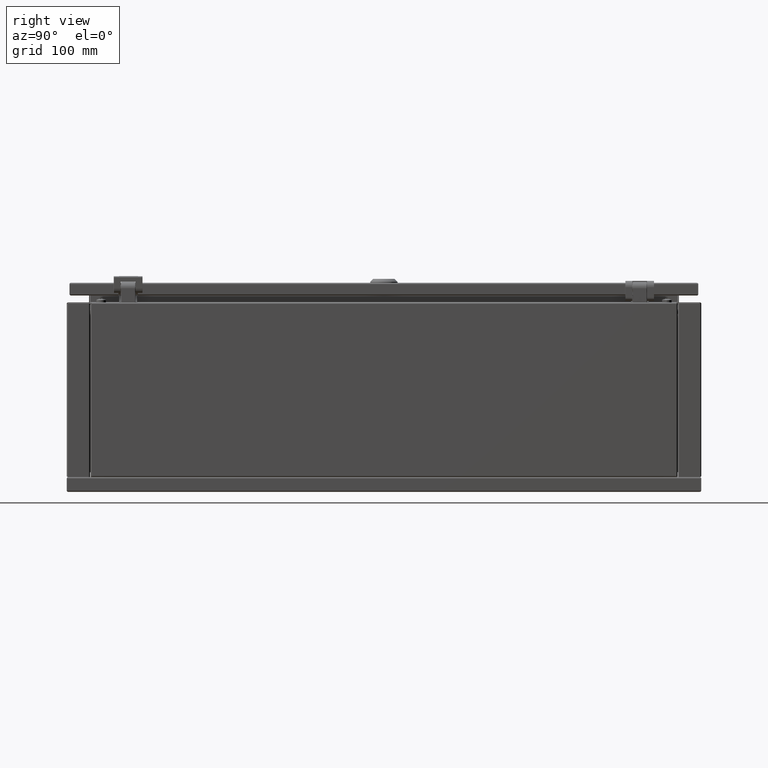
[diagram: clean part render]
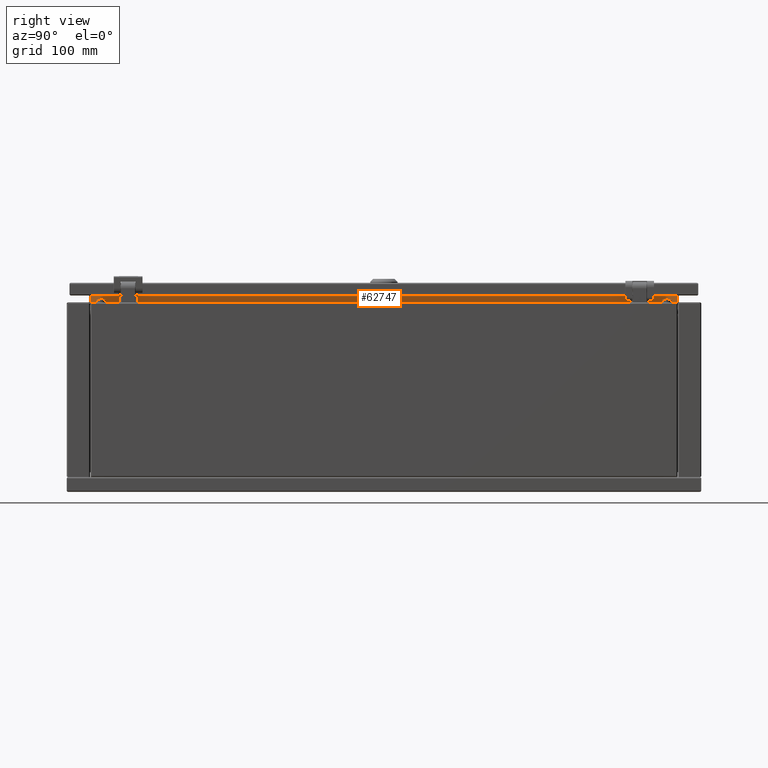
[diagram: same view with one face highlighted and labeled with its STEP entity id]
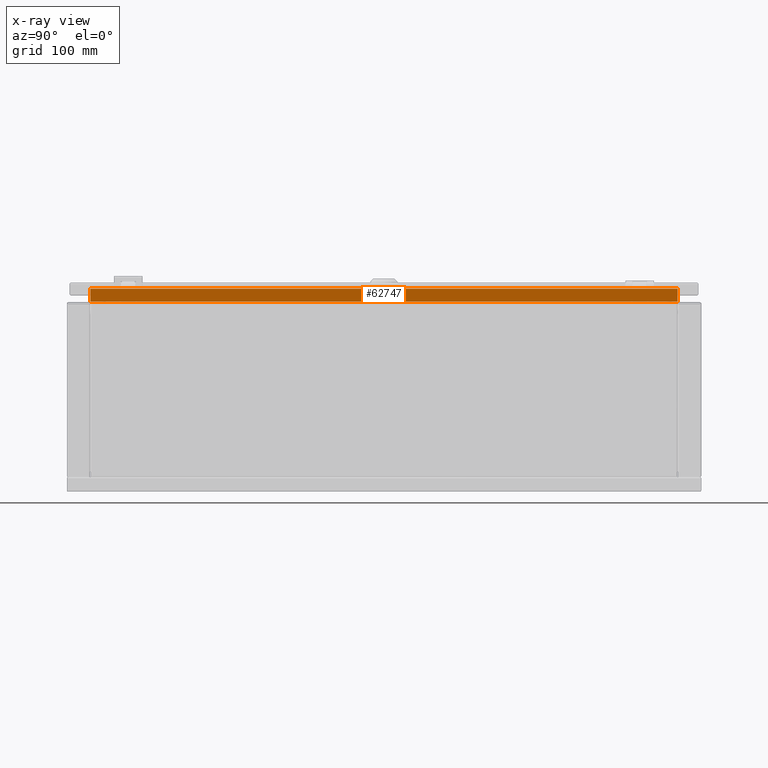
[diagram: x-ray of the same camera — body ghosted, the highlighted face saturated]
A machine part, right view. The second image highlights one B-rep face of the part: STEP entity #62747.
The next image is the same camera in x-ray: the body ghosted, the highlighted face saturated — about 0% of this face is hidden behind the body in this view.
In plain terms, the highlighted planar face has unit normal (1, -0, -0).
Its self-contained STEP definition (entity closure, byte-faithful):
#1220 = CARTESIAN_POINT ( 'NONE',  ( 127.1000000000019800, 299.7500000000000000, 207.0000000000000000 ) ) ;
#1422 = VECTOR ( 'NONE', #3984, 1000.000000000000000 ) ;
#2916 = DIRECTION ( 'NONE',  ( 1.665334536937769800E-016, 1.000000000000000000, -1.318389841742359800E-016 ) ) ;
#3427 = LINE ( 'NONE', #59960, #1422 ) ;
#3984 = DIRECTION ( 'NONE',  ( 1.665334536937769800E-016, 1.000000000000000000, -1.318389841742359800E-016 ) ) ;
#8254 = LINE ( 'NONE', #14078, #70071 ) ;
#14078 = CARTESIAN_POINT ( 'NONE',  ( 127.1000000000019800, -300.7500000000000000, 207.0000000000000000 ) ) ;
#14185 = EDGE_CURVE ( 'NONE', #79861, #68674, #27263, .T. ) ;
#17589 = CARTESIAN_POINT ( 'NONE',  ( 127.1000000000019800, 300.7500000000000000, 193.5000000000000000 ) ) ;
#17960 = DIRECTION ( 'NONE',  ( 1.665334536937769800E-016, 1.000000000000000000, -1.318389841742359800E-016 ) ) ;
#18504 = DIRECTION ( 'NONE',  ( 1.000000000000000000, -1.665334536937775000E-016, -3.965082230804130600E-015 ) ) ;
#18924 = FACE_OUTER_BOUND ( 'NONE', #41985, .T. ) ;
#19633 = VERTEX_POINT ( 'NONE', #76502 ) ;
#19962 = CARTESIAN_POINT ( 'NONE',  ( 127.1000000000019800, 300.7500000000000000, 207.0000000000000000 ) ) ;
#22142 = CARTESIAN_POINT ( 'NONE',  ( 127.1000000000019800, 300.7500000000000000, 207.0000000000000000 ) ) ;
#22742 = LINE ( 'NONE', #22142, #43392 ) ;
#25415 = VERTEX_POINT ( 'NONE', #71769 ) ;
#26910 = CARTESIAN_POINT ( 'NONE',  ( 127.1000000000019800, -300.7500000000000000, 193.5000000000000000 ) ) ;
#27263 = LINE ( 'NONE', #40892, #53691 ) ;
#29066 = EDGE_CURVE ( 'NONE', #68674, #79597, #36641, .T. ) ;
#31241 = VECTOR ( 'NONE', #45151, 1000.000000000000000 ) ;
#33191 = LINE ( 'NONE', #1220, #31241 ) ;
#34560 = DIRECTION ( 'NONE',  ( -3.954062174942380600E-015, 2.356609554401770000E-014, -1.000000000000000000 ) ) ;
#36540 = CARTESIAN_POINT ( 'NONE',  ( 127.1000000000019800, -300.7500000000000000, 207.0000000000000000 ) ) ;
#36641 = LINE ( 'NONE', #68644, #51309 ) ;
#37730 = DIRECTION ( 'NONE',  ( -1.665334536937769800E-016, -1.000000000000000000, 1.318389841742359800E-016 ) ) ;
#40892 = CARTESIAN_POINT ( 'NONE',  ( 127.1000000000019800, 300.7500000000000000, 193.0000000000000000 ) ) ;
#41985 = EDGE_LOOP ( 'NONE', ( #51326, #64930, #76131, #49367, #71536, #63778 ) ) ;
#42679 = EDGE_CURVE ( 'NONE', #19633, #79861, #22742, .T. ) ;
#43392 = VECTOR ( 'NONE', #2916, 1000.000000000000000 ) ;
#45151 = DIRECTION ( 'NONE',  ( -1.665334536937769800E-016, -1.000000000000000000, 1.318389841742359800E-016 ) ) ;
#49367 = ORIENTED_EDGE ( 'NONE', *, *, #42679, .F. ) ;
#51309 = VECTOR ( 'NONE', #37730, 1000.000000000000000 ) ;
#51326 = ORIENTED_EDGE ( 'NONE', *, *, #68302, .F. ) ;
#53691 = VECTOR ( 'NONE', #34560, 1000.000000000000000 ) ;
#55235 = EDGE_CURVE ( 'NONE', #72179, #25415, #3427, .T. ) ;
#56369 = PLANE ( 'NONE',  #74711 ) ;
#59057 = EDGE_CURVE ( 'NONE', #19633, #25415, #33191, .T. ) ;
#59960 = CARTESIAN_POINT ( 'NONE',  ( 127.1000000000019800, 300.7500000000000000, 207.0000000000000000 ) ) ;
#62692 = CARTESIAN_POINT ( 'NONE',  ( 127.1000000000013700, 300.7500000000000000, 15.50000000000000000 ) ) ;
#62747 = ADVANCED_FACE ( 'NONE', ( #18924 ), #56369, .T. ) ;
#63778 = ORIENTED_EDGE ( 'NONE', *, *, #55235, .F. ) ;
#64930 = ORIENTED_EDGE ( 'NONE', *, *, #29066, .F. ) ;
#68302 = EDGE_CURVE ( 'NONE', #79597, #72179, #8254, .T. ) ;
#68644 = CARTESIAN_POINT ( 'NONE',  ( 127.1000000000019800, 300.7500000000000000, 193.5000000000000000 ) ) ;
#68674 = VERTEX_POINT ( 'NONE', #17589 ) ;
#69482 = DIRECTION ( 'NONE',  ( 3.954062174942385400E-015, 2.243978408070900000E-016, 1.000000000000000000 ) ) ;
#70071 = VECTOR ( 'NONE', #69482, 1000.000000000000000 ) ;
#71536 = ORIENTED_EDGE ( 'NONE', *, *, #59057, .T. ) ;
#71769 = CARTESIAN_POINT ( 'NONE',  ( 127.1000000000019800, -299.7500000000000000, 207.0000000000000000 ) ) ;
#72179 = VERTEX_POINT ( 'NONE', #36540 ) ;
#74711 = AXIS2_PLACEMENT_3D ( 'NONE', #62692, #18504, #17960 ) ;
#76131 = ORIENTED_EDGE ( 'NONE', *, *, #14185, .F. ) ;
#76502 = CARTESIAN_POINT ( 'NONE',  ( 127.1000000000019800, 299.7500000000000000, 207.0000000000000000 ) ) ;
#79597 = VERTEX_POINT ( 'NONE', #26910 ) ;
#79861 = VERTEX_POINT ( 'NONE', #19962 ) ;